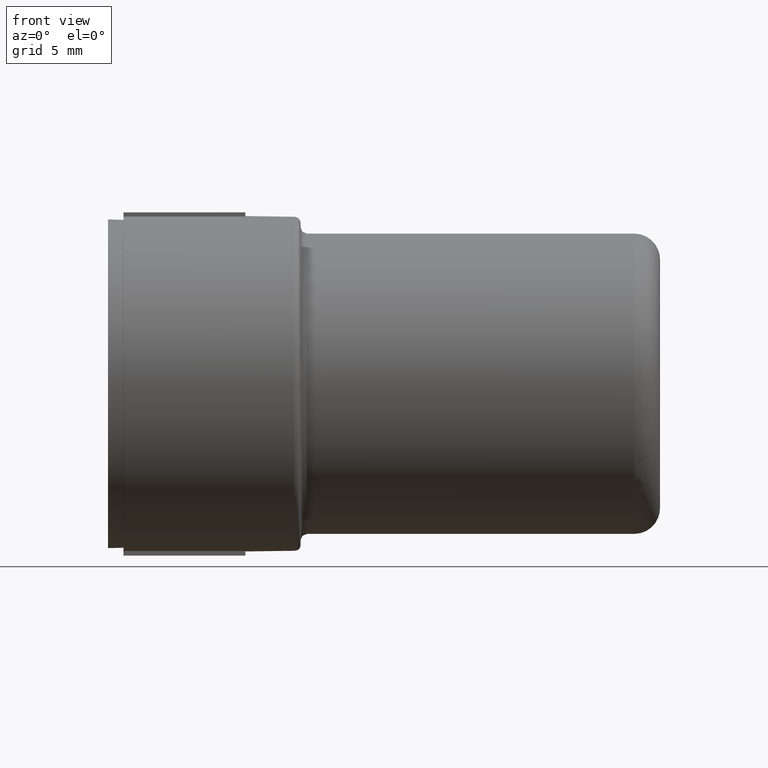
[diagram: clean part render]
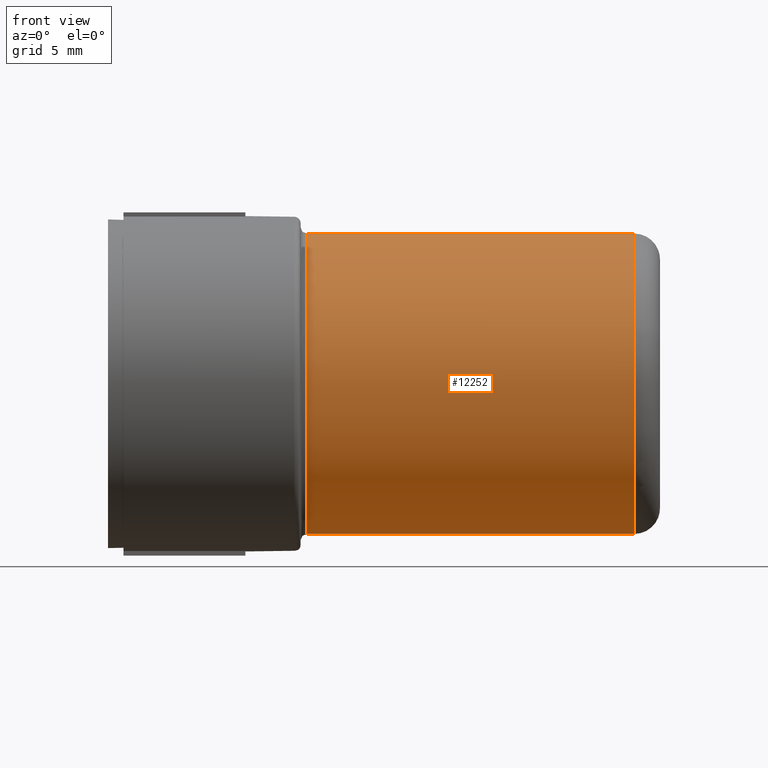
[diagram: same view with one face highlighted and labeled with its STEP entity id]
A machine part, front view. The second image highlights one B-rep face of the part: STEP entity #12252.
In plain terms, the highlighted cylindrical surface (bore or boss wall) has radius 11.7 mm, axis along (1, 0, 0).
Its self-contained STEP definition (entity closure, byte-faithful):
#12218=CARTESIAN_POINT('',(-4.153181380705318,13.793928645136324,0.0));
#12219=VERTEX_POINT('',#12218);
#12220=CARTESIAN_POINT('',(-4.153181380705311,2.093928645136329,0.0));
#12221=DIRECTION('',(1.0,1.813423E-013,0.0));
#12222=DIRECTION('',(-1.813423E-013,1.0,0.0));
#12223=AXIS2_PLACEMENT_3D('',#12220,#12221,#12222);
#12224=CIRCLE('',#12223,11.699999999999996);
#12225=EDGE_CURVE('',#12219,#12219,#12224,.T.);
#12233=CARTESIAN_POINT('',(8.596818619294691,2.093928645136336,0.0));
#12234=DIRECTION('',(1.0,4.895456E-016,0.0));
#12235=DIRECTION('',(-1.813423E-013,1.0,0.0));
#12236=AXIS2_PLACEMENT_3D('',#12233,#12234,#12235);
#12237=CYLINDRICAL_SURFACE('',#12236,11.699999999999998);
#12238=CARTESIAN_POINT('',(21.346818619294684,13.793928645136342,0.0));
#12239=VERTEX_POINT('',#12238);
#12240=CARTESIAN_POINT('',(21.346818619294687,2.093928645136342,0.0));
#12241=DIRECTION('',(1.0,1.813423E-013,0.0));
#12242=DIRECTION('',(-1.813423E-013,1.0,0.0));
#12243=AXIS2_PLACEMENT_3D('',#12240,#12241,#12242);
#12244=CIRCLE('',#12243,11.699999999999999);
#12245=EDGE_CURVE('',#12239,#12239,#12244,.T.);
#12246=ORIENTED_EDGE('',*,*,#12245,.F.);
#12247=EDGE_LOOP('',(#12246));
#12248=FACE_OUTER_BOUND('',#12247,.T.);
#12249=ORIENTED_EDGE('',*,*,#12225,.T.);
#12250=EDGE_LOOP('',(#12249));
#12251=FACE_BOUND('',#12250,.T.);
#12252=ADVANCED_FACE('',(#12248,#12251),#12237,.T.);